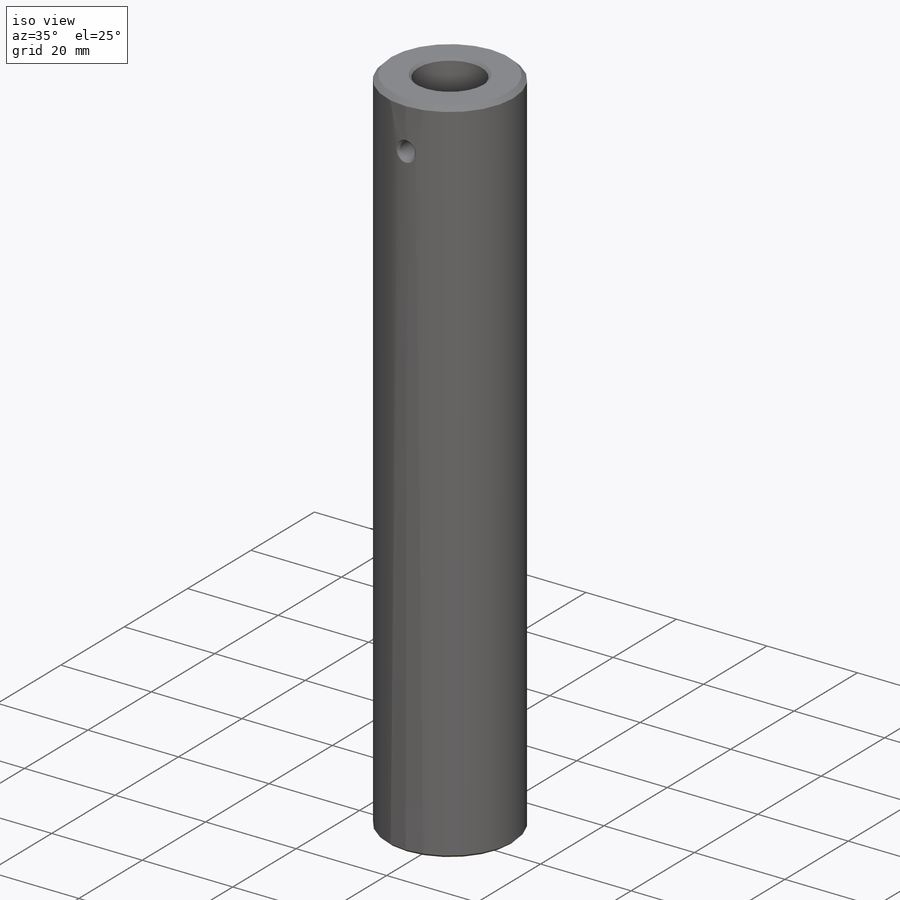
[diagram: iso view]
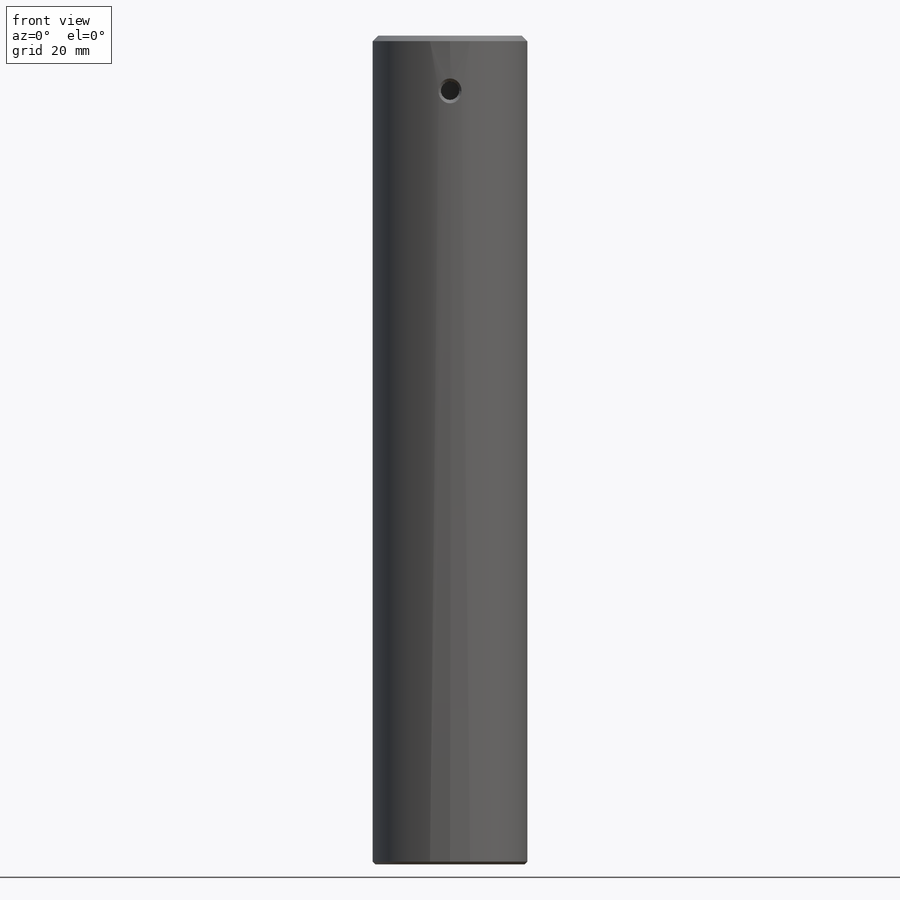
[diagram: front view]
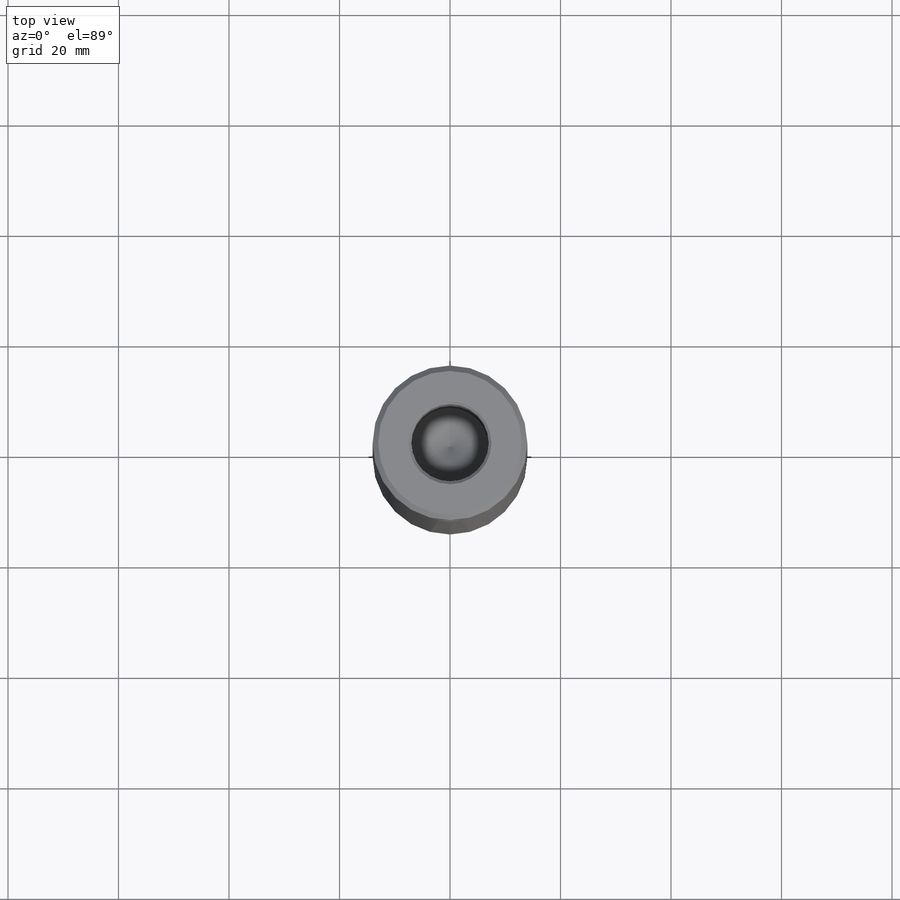
[diagram: top view]
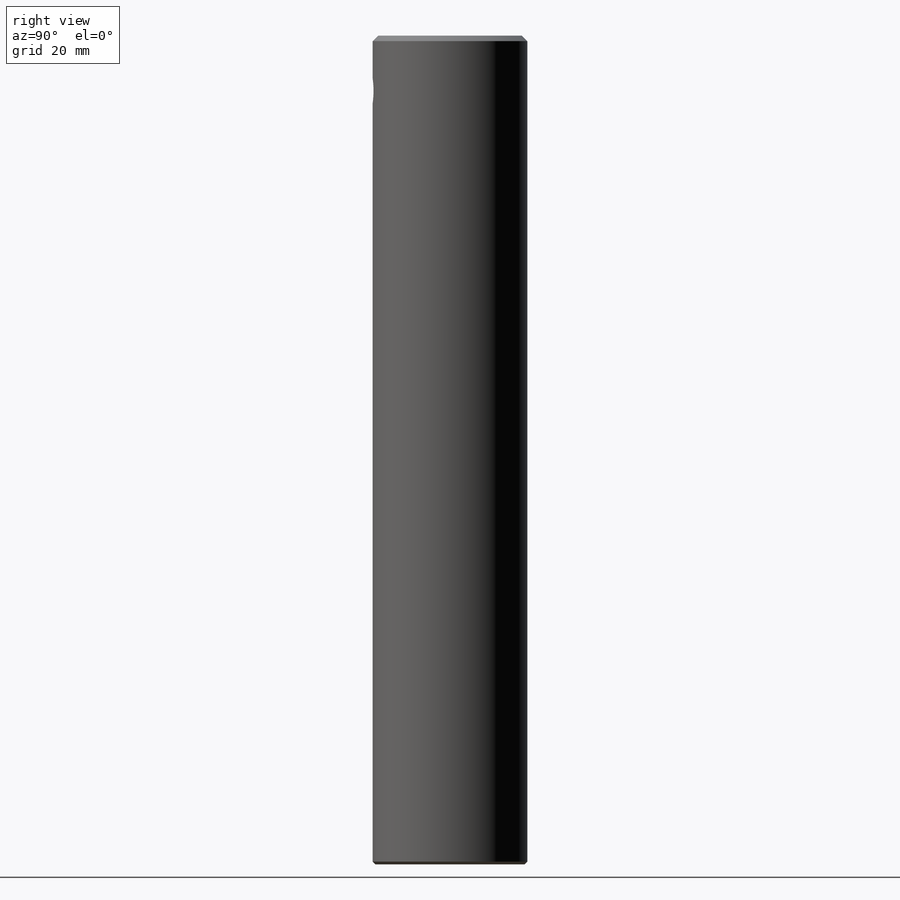
[diagram: right view]
SOLIDWORKS PART (.sldprt)
format: sldprt  version: not decoded by parser v0  size: 224,768 bytes
history: native  units: mm
features: sketch x9, plane x3, hole x3, chamfer x2, thread x2, material x1, extrude x1 (+8 scaffold rows collapsed)
feature tree (29):
  scaffold x8  (default folders/planes/origin — collapsed)
  material  "Matériau <non spécifié>"
  plane  "Plan de face"
  plane  "Plan de dessus"
  plane  "Plan de droite"
  sketch  "Esquisse1"  dims[D1=28.0mm]
  extrude  "Boss.-Extru.1"  Depth=150mm
  chamfer  "Chanfrein1"  Distance=1mm Angle=45deg
  sketch  "Esquisse2"  dims[D1=14.0mm]
  hole  "Diamètre du perçage Ø14.0 (14)1"  Diameter=14mm Depth=35mm
  sketch  "Esquisse5"
  sketch  "Esquisse4"  dims[hole-wizard template sketch: 39 standard entries collapsed; hole parameters kept: c13.Diamètre du perçage=14.0mm c13.Profondeur du perçage=35.0mm c13.Diamètre du fraisage entrant=15.0mm c13.D4=~33.297463mm c13.Angle du fraisage entrant=90.0deg c14.D5=~14.816244mm c14.Angle de pointe=118.0deg]
  chamfer  "Chanfrein2"  Distance=0.5mm Angle=45deg
  hole  "Trou taraudé M8x1.01"  Diameter=7mm Depth=25mm
  sketch  "Esquisse7"
  sketch  "Esquisse6"  dims[hole-wizard template sketch: 46 standard entries collapsed; hole parameters kept: c15.Diamètre du trou pour taraudage=7.0mm c15.Profondeur du trou pour taraudage=25.0mm c15.D3=~14.816244mm c15.Angle de pointe=118.0deg]
  thread  "Filetage de perçage1"  Diameter=20mm  [1 undecoded]
  sketch  "Esquisse8"  dims[D2=~49.071551mm D1=10.0mm]
  hole  "Trou taraudé M42"  Diameter=3.3mm Depth=14mm
  sketch  "Esquisse12"
  sketch  "Esquisse11"  dims[hole-wizard template sketch: 54 standard entries collapsed; hole parameters kept: c17.Diamètre du trou pour taraudage jusqu'au prochain=3.3mm c17.Profondeur du trou pour taraudage jusqu'au prochain=14.0mm c17.Diamètre du fraisage débouchant=4.5mm c17.D4=~2.963249mm c17.Angle du fraisage débouchant=90.0deg]
  thread  "Filetage de perçage2"  Diameter=4mm  [1 undecoded]
decode coverage: 14 of 17 modeling features carry decoded parameters
note: ~ marks probable driven/reference dimensions
note: 2 parameter values undecoded
note: suppression state not decoded; provenance and decode notes live in map.json
